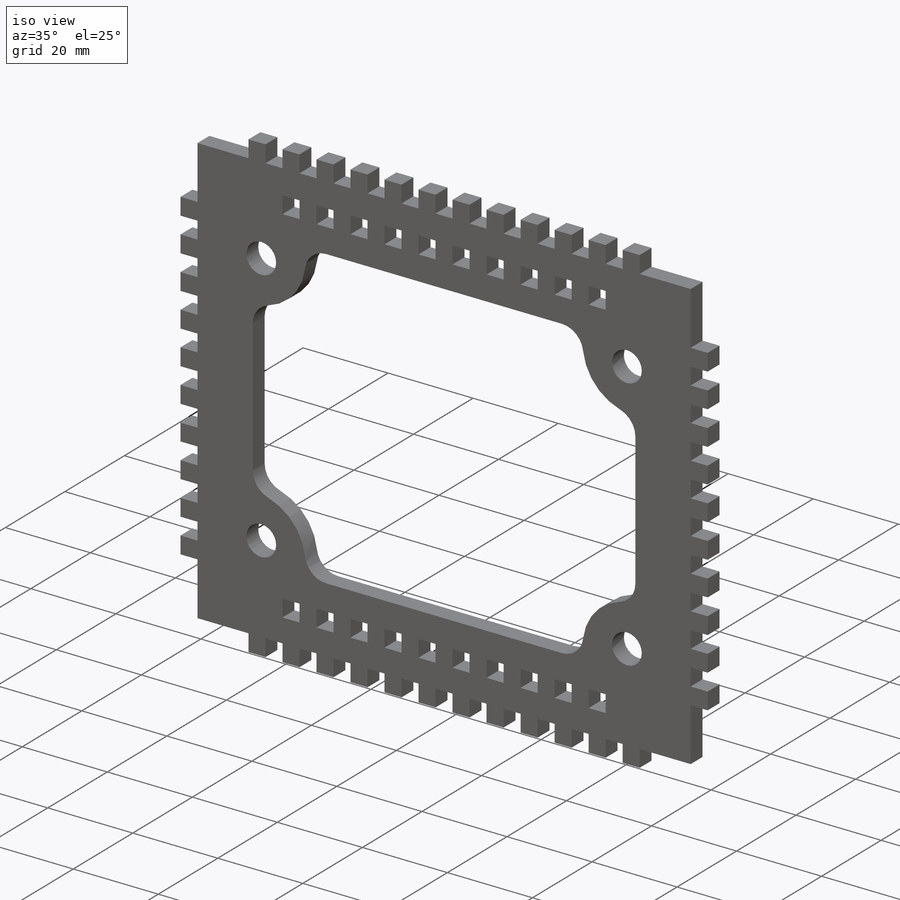
[diagram: iso view]
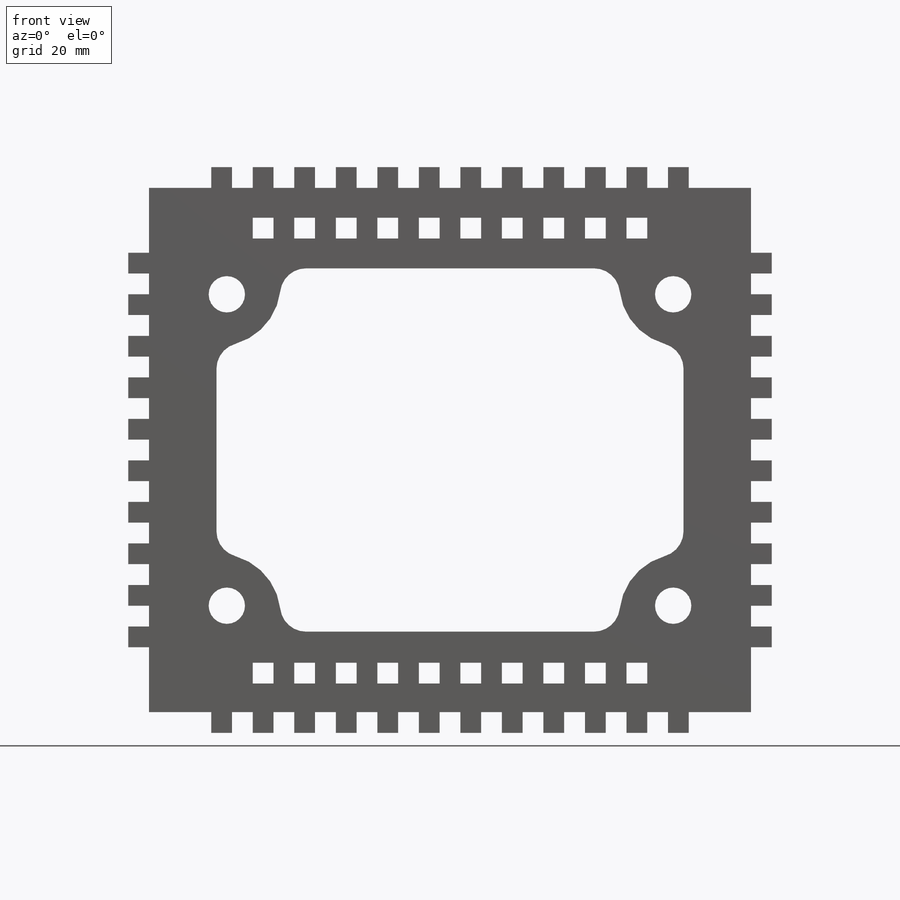
[diagram: front view]
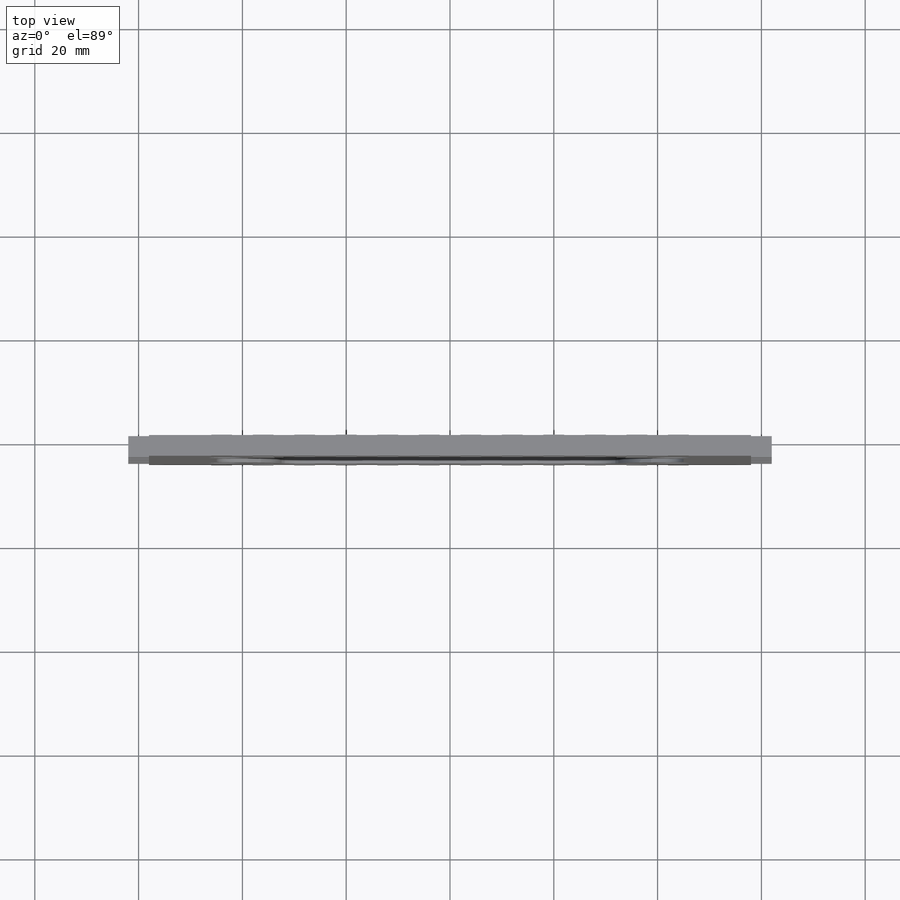
[diagram: top view]
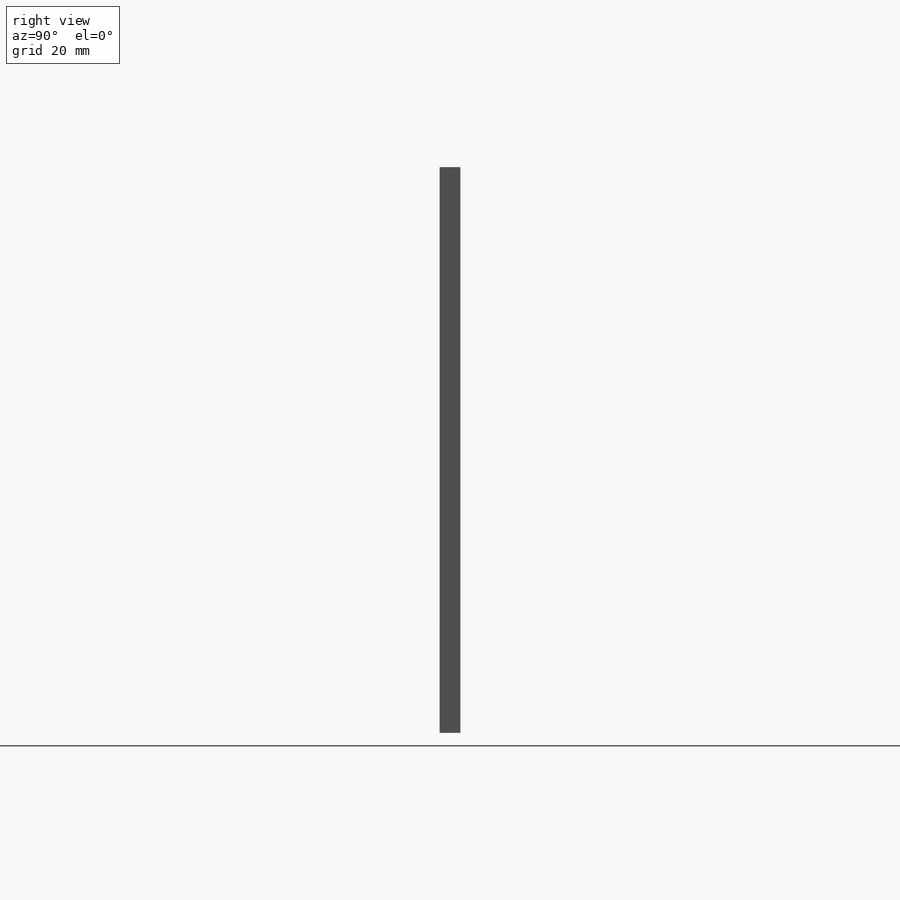
[diagram: right view]
SOLIDWORKS PART (.sldprt)
format: sldprt  version: not decoded by parser v0  size: 706,048 bytes
history: native  units: mm
features: fillet x8, sketch x4, extrude x3, material x1, cut_extrude x1 (+13 scaffold rows collapsed)
feature tree (30):
  scaffold x13  (default folders/planes/origin — collapsed)
  material  "Cedar"
  sketch  "Sketch1"  dims[c1.D3=7.0mm c1.D8=10.0mm c1.D7=10.0mm c1.D9=15.0mm c1.D10=12.0mm c1.D11=12.0mm c1.D1=60.0mm c1.D2=50.0mm c1.D4=44.0mm c1.D5=30.0mm c2.D1=20.5mm c2.D2=20.0mm c2.D6=10.0mm c2.D7=10.0mm c2.D9=48.0mm c2.D5=15.0mm c3.D6=20.0mm c3.D7=30.0mm c3.D8=20.0mm c3.D9=50.5mm c3.D10=~99.834314mm c4.D8=100.0mm c4.D10=128.0mm c4.D2=116.0mm c4.D1=20.0mm c4.D4=15.0mm c5.D1=10.0mm c5.D4=20.0mm c5.D6=88.0mm c6.D4=43.0mm c6.D6=30.0mm c6.D7=10.0mm c6.D9=15.0mm c6.D8=50.5mm c6.D11=50.5mm c7.D9=5.0mm c7.D12=5.0mm c7.D5=45.0mm c8.D9=35.0mm c8.D12=50.0mm]
  extrude  "Boss-Extrude1"  Depth=4mm
  sketch  "Sketch3"  dims[c1.D1=2.0mm c1.D2=4.0mm c1.D3=4.0mm c1.D4=2.0mm c1.D6=2.0mm c1.D7=4.0mm c1.D8=4.0mm c1.D9=2.0mm c2.D6=2.0mm c2.D7=128.0mm c3.D6=4.0mm c3.D7=4.0mm c3.D8=2.0mm c3.D9=2.0mm c3.D11=4.0mm c4.D8=2.0mm c4.D4=2.0mm c4.D11=4.0mm c4.D2=4.0mm c4.D1=2.0mm c5.D2=4.0mm c5.D3=4.0mm c5.D4=4.0mm c5.D5=4.0mm c5.D6=2.0mm c5.D7=4.0mm c5.D8=5.5mm c5.D1=5.75mm c5.D9=15.5mm c5.D10=2.0mm c5.D11=4.0mm c6.D9=5.0 c6.D7=5.0]
  cut_extrude  "Cut-Extrude2"  Depth=4mm
  fillet  "Fillet1"  Radius=5mm
  fillet  "Fillet2"  Radius=5mm
  fillet  "Fillet3"  Radius=5mm
  fillet  "Fillet4"  Radius=5mm
  fillet  "Fillet5"  Radius=5mm
  fillet  "Fillet6"  Radius=5mm
  fillet  "Fillet7"  Radius=5mm
  fillet  "Fillet8"  Radius=5mm
  sketch  "Sketch4"  dims[D1=4.0mm D2=4.0mm D3=2.0mm D4=5.0]
  extrude  "Boss-Extrude2"  Depth=4mm
  sketch  "Sketch5"  dims[D1=4.0mm D2=4.0mm D3=2.0mm D4=6.0]
  extrude  "Boss-Extrude3"  Depth=4mm
decode coverage: 16 of 16 modeling features carry decoded parameters
note: ~ marks probable driven/reference dimensions
note: suppression state not decoded; provenance and decode notes live in map.json
